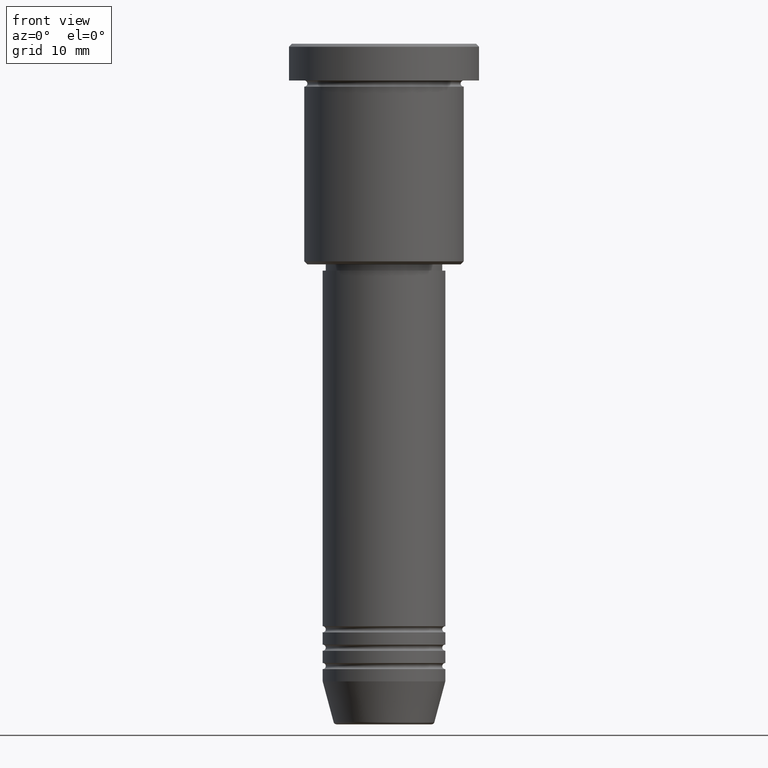
[diagram: clean part render]
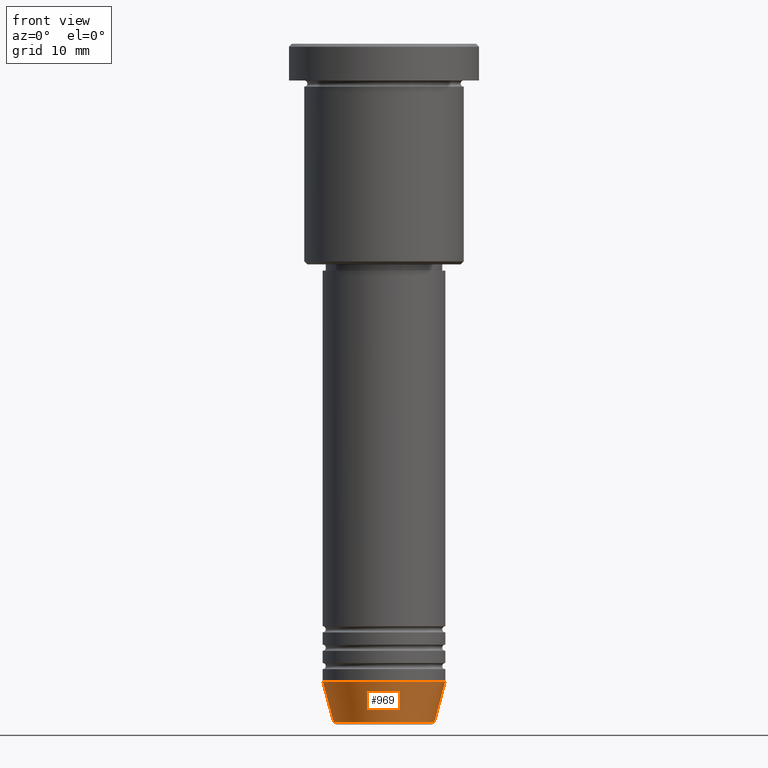
[diagram: same view with one face highlighted and labeled with its STEP entity id]
A machine part, front view. The second image highlights one B-rep face of the part: STEP entity #969.
In plain terms, the highlighted conical surface has half-angle 15 deg.
Its self-contained STEP definition (entity closure, byte-faithful):
#42 = DIRECTION ( 'NONE',  ( 1.000000000000000000, 0.000000000000000000, 0.000000000000000000 ) ) ;
#44 = CARTESIAN_POINT ( 'NONE',  ( -10.00000000000000000, 1.224646799147353256E-15, -104.0000000000000142 ) ) ;
#48 = VERTEX_POINT ( 'NONE', #442 ) ;
#64 = DIRECTION ( 'NONE',  ( 1.000000000000000000, 0.000000000000000000, 0.000000000000000000 ) ) ;
#185 = EDGE_LOOP ( 'NONE', ( #1109, #243, #1034, #247 ) ) ;
#239 = CIRCLE ( 'NONE', #259, 8.223655072137191269 ) ;
#243 = ORIENTED_EDGE ( 'NONE', *, *, #736, .T. ) ;
#247 = ORIENTED_EDGE ( 'NONE', *, *, #806, .F. ) ;
#259 = AXIS2_PLACEMENT_3D ( 'NONE', #845, #575, #42 ) ;
#272 = FACE_OUTER_BOUND ( 'NONE', #185, .T. ) ;
#316 = AXIS2_PLACEMENT_3D ( 'NONE', #1050, #884, #64 ) ;
#366 = CARTESIAN_POINT ( 'NONE',  ( 0.000000000000000000, 0.000000000000000000, -104.0000000000000142 ) ) ;
#387 = VERTEX_POINT ( 'NONE', #44 ) ;
#442 = CARTESIAN_POINT ( 'NONE',  ( 8.223655072137191269, 0.000000000000000000, -110.6294095225512706 ) ) ;
#534 = CARTESIAN_POINT ( 'NONE',  ( -8.223655072137191269, 1.115877042642912054E-15, -110.6294095225512706 ) ) ;
#575 = DIRECTION ( 'NONE',  ( -0.000000000000000000, -0.000000000000000000, 1.000000000000000000 ) ) ;
#652 = VERTEX_POINT ( 'NONE', #534 ) ;
#671 = CARTESIAN_POINT ( 'NONE',  ( -10.00000000000000000, 1.224646799147353256E-15, -104.0000000000000142 ) ) ;
#709 = DIRECTION ( 'NONE',  ( -0.000000000000000000, -0.000000000000000000, 1.000000000000000000 ) ) ;
#718 = CONICAL_SURFACE ( 'NONE', #815, 10.00000000000000000, 0.2617993877991500740 ) ;
#733 = DIRECTION ( 'NONE',  ( 1.000000000000000000, 0.000000000000000000, 0.000000000000000000 ) ) ;
#736 = EDGE_CURVE ( 'NONE', #652, #48, #239, .T. ) ;
#740 = CIRCLE ( 'NONE', #316, 10.00000000000000000 ) ;
#743 = LINE ( 'NONE', #671, #819 ) ;
#799 = CARTESIAN_POINT ( 'NONE',  ( 10.00000000000000000, 0.000000000000000000, -104.0000000000000142 ) ) ;
#806 = EDGE_CURVE ( 'NONE', #387, #871, #740, .T. ) ;
#815 = AXIS2_PLACEMENT_3D ( 'NONE', #366, #709, #733 ) ;
#819 = VECTOR ( 'NONE', #837, 1000.000000000000000 ) ;
#837 = DIRECTION ( 'NONE',  ( -0.2588190451025213501, 3.169619151431772337E-17, 0.9659258262890680902 ) ) ;
#845 = CARTESIAN_POINT ( 'NONE',  ( 0.000000000000000000, 0.000000000000000000, -110.6294095225512706 ) ) ;
#871 = VERTEX_POINT ( 'NONE', #799 ) ;
#884 = DIRECTION ( 'NONE',  ( -0.000000000000000000, -0.000000000000000000, 1.000000000000000000 ) ) ;
#911 = VECTOR ( 'NONE', #1011, 1000.000000000000000 ) ;
#969 = ADVANCED_FACE ( 'NONE', ( #272 ), #718, .T. ) ;
#981 = EDGE_CURVE ( 'NONE', #48, #871, #1092, .T. ) ;
#986 = CARTESIAN_POINT ( 'NONE',  ( 10.00000000000000000, 0.000000000000000000, -104.0000000000000142 ) ) ;
#1011 = DIRECTION ( 'NONE',  ( 0.2588190451025213501, 0.000000000000000000, 0.9659258262890680902 ) ) ;
#1034 = ORIENTED_EDGE ( 'NONE', *, *, #981, .T. ) ;
#1050 = CARTESIAN_POINT ( 'NONE',  ( 0.000000000000000000, 0.000000000000000000, -104.0000000000000142 ) ) ;
#1091 = EDGE_CURVE ( 'NONE', #652, #387, #743, .T. ) ;
#1092 = LINE ( 'NONE', #986, #911 ) ;
#1109 = ORIENTED_EDGE ( 'NONE', *, *, #1091, .F. ) ;